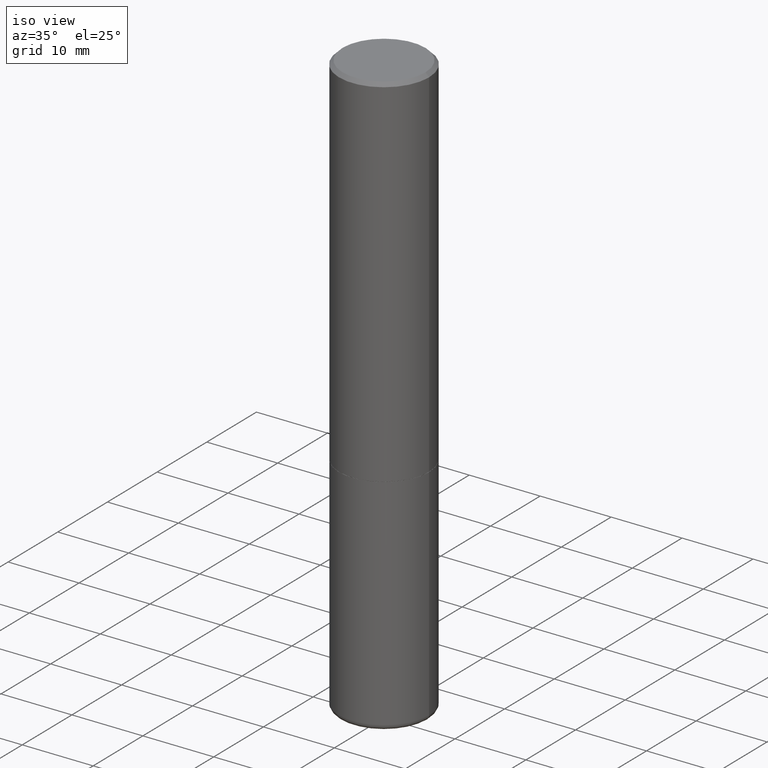
[diagram: clean part render]
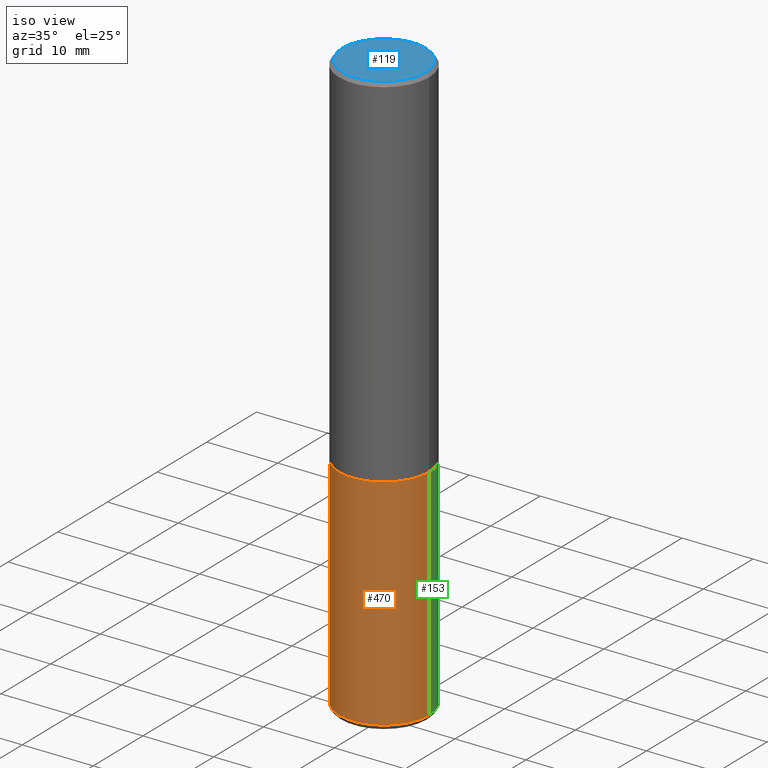
[diagram: same view with three faces highlighted in distinct colors, each labeled with its STEP entity id]
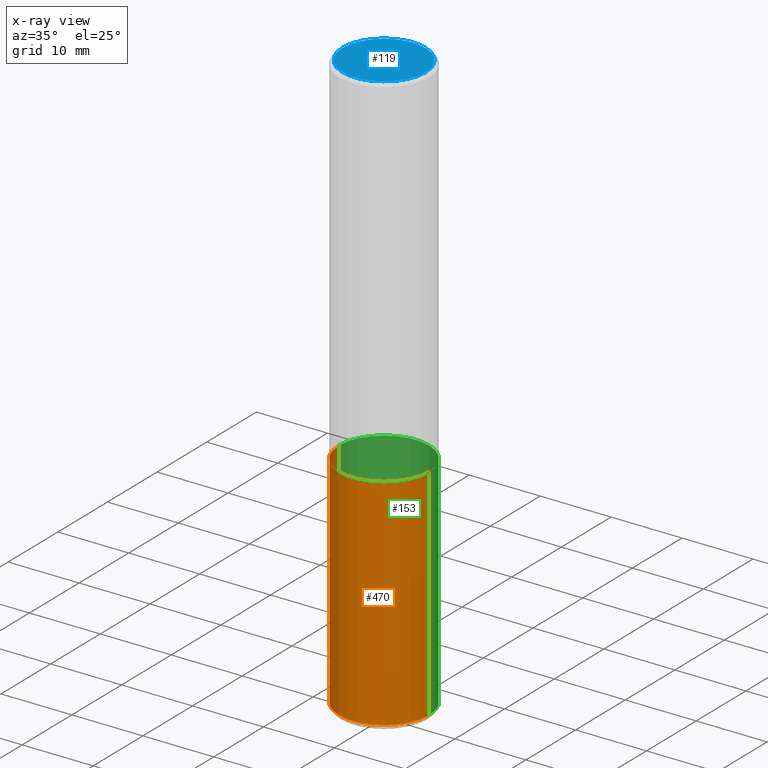
[diagram: x-ray of the same camera — body ghosted, the three highlighted faces saturated]
A machine part, iso view with three faces highlighted in distinct colors.
The next image is the same camera in x-ray (body ghosted, the three faces saturated) — at least one of them is partly hidden behind the body in this view.
Their STEP definitions:

[orange] entity #470 — the highlighted cylindrical surface (partial cylindrical patch) has radius 6.35 mm, axis along (-0, 0, 1).
#1 = DIRECTION ( 'NONE',  ( -2.445468806185136597E-29, 3.491481338843145583E-15, 1.000000000000000000 ) ) ;
#20 = CARTESIAN_POINT ( 'NONE',  ( -0.2499999999999998612, 1.776356839400249479E-15, -1.229733772563725745E-29 ) ) ;
#41 = CYLINDRICAL_SURFACE ( 'NONE', #102, 0.2499999999999998612 ) ;
#65 = EDGE_LOOP ( 'NONE', ( #230, #265, #428, #123 ) ) ;
#75 = VECTOR ( 'NONE', #321, 39.37007874015748143 ) ;
#96 = DIRECTION ( 'NONE',  ( -2.445468806185136597E-29, 3.491481338843145583E-15, 1.000000000000000000 ) ) ;
#102 = AXIS2_PLACEMENT_3D ( 'NONE', #196, #350, #198 ) ;
#118 = EDGE_CURVE ( 'NONE', #306, #121, #211, .T. ) ;
#121 = VERTEX_POINT ( 'NONE', #477 ) ;
#123 = ORIENTED_EDGE ( 'NONE', *, *, #236, .F. ) ;
#143 = CARTESIAN_POINT ( 'NONE',  ( 7.874412349394905166E-29, -1.124257389942225570E-14, -3.220001142308074993 ) ) ;
#150 = DIRECTION ( 'NONE',  ( 1.000000000000000000, -6.982962677686269077E-15, 0.000000000000000000 ) ) ;
#179 = AXIS2_PLACEMENT_3D ( 'NONE', #434, #96, #185 ) ;
#185 = DIRECTION ( 'NONE',  ( 1.000000000000000000, -6.982962677686268288E-15, 0.000000000000000000 ) ) ;
#189 = EDGE_CURVE ( 'NONE', #380, #305, #362, .T. ) ;
#194 = CIRCLE ( 'NONE', #256, 0.2500000000000000555 ) ;
#196 = CARTESIAN_POINT ( 'NONE',  ( 0.000000000000000000, 0.000000000000000000, 0.000000000000000000 ) ) ;
#198 = DIRECTION ( 'NONE',  ( 1.000000000000000000, -6.982962677686266711E-15, 4.876176775795935793E-29 ) ) ;
#211 = LINE ( 'NONE', #215, #490 ) ;
#215 = CARTESIAN_POINT ( 'NONE',  ( 0.2499999999999998612, -1.745740669421565692E-15, 1.219044193948983248E-29 ) ) ;
#230 = ORIENTED_EDGE ( 'NONE', *, *, #189, .F. ) ;
#236 = EDGE_CURVE ( 'NONE', #305, #121, #396, .T. ) ;
#238 = FACE_OUTER_BOUND ( 'NONE', #65, .T. ) ;
#256 = AXIS2_PLACEMENT_3D ( 'NONE', #143, #1, #150 ) ;
#259 = CARTESIAN_POINT ( 'NONE',  ( -0.2499999999999996669, -7.336411449154023361E-15, -2.000000000000000000 ) ) ;
#265 = ORIENTED_EDGE ( 'NONE', *, *, #332, .T. ) ;
#305 = VERTEX_POINT ( 'NONE', #259 ) ;
#306 = VERTEX_POINT ( 'NONE', #381 ) ;
#321 = DIRECTION ( 'NONE',  ( -2.445468806185136877E-29, 3.491481338843145188E-15, 1.000000000000000000 ) ) ;
#332 = EDGE_CURVE ( 'NONE', #380, #306, #194, .T. ) ;
#350 = DIRECTION ( 'NONE',  ( -2.445468806185136597E-29, 3.491481338843145583E-15, 1.000000000000000000 ) ) ;
#362 = LINE ( 'NONE', #20, #75 ) ;
#380 = VERTEX_POINT ( 'NONE', #416 ) ;
#381 = CARTESIAN_POINT ( 'NONE',  ( 0.2500000000000000555, -1.298831456884382237E-14, -3.220001142308074993 ) ) ;
#396 = CIRCLE ( 'NONE', #179, 0.2499999999999996669 ) ;
#416 = CARTESIAN_POINT ( 'NONE',  ( -0.2500000000000000555, -7.336411449154020205E-15, -3.220001142308074993 ) ) ;
#428 = ORIENTED_EDGE ( 'NONE', *, *, #118, .T. ) ;
#434 = CARTESIAN_POINT ( 'NONE',  ( 4.890937612370273194E-29, -6.982962677686291165E-15, -2.000000000000000000 ) ) ;
#470 = ADVANCED_FACE ( 'NONE', ( #238 ), #41, .T. ) ;
#477 = CARTESIAN_POINT ( 'NONE',  ( 0.2499999999999996669, -8.728703347107855476E-15, -2.000000000000000000 ) ) ;
#481 = DIRECTION ( 'NONE',  ( -2.445468806185136877E-29, 3.491481338843145188E-15, 1.000000000000000000 ) ) ;
#490 = VECTOR ( 'NONE', #481, 39.37007874015748143 ) ;

[blue] entity #119 — the highlighted planar face has unit normal (0, -0, -1).
#7 = VERTEX_POINT ( 'NONE', #160 ) ;
#23 = CARTESIAN_POINT ( 'NONE',  ( 1.606081415867835940E-15, 0.2299999999999992606, -8.009064516888707148E-16 ) ) ;
#40 = VERTEX_POINT ( 'NONE', #391 ) ;
#48 = EDGE_LOOP ( 'NONE', ( #457, #79 ) ) ;
#59 = DIRECTION ( 'NONE',  ( 2.438088387897960049E-29, -3.491481338843145188E-15, -1.000000000000000000 ) ) ;
#79 = ORIENTED_EDGE ( 'NONE', *, *, #92, .T. ) ;
#92 = EDGE_CURVE ( 'NONE', #40, #7, #167, .T. ) ;
#98 = DIRECTION ( 'NONE',  ( -2.445468806185136597E-29, 3.491481338843145583E-15, 1.000000000000000000 ) ) ;
#115 = AXIS2_PLACEMENT_3D ( 'NONE', #23, #59, #364 ) ;
#119 = ADVANCED_FACE ( 'NONE', ( #406 ), #398, .F. ) ;
#120 = CARTESIAN_POINT ( 'NONE',  ( -1.043851414335219820E-46, 1.490343170380447200E-32, 4.268512490100411279E-18 ) ) ;
#132 = AXIS2_PLACEMENT_3D ( 'NONE', #120, #392, #354 ) ;
#160 = CARTESIAN_POINT ( 'NONE',  ( -0.2299999999999992606, 1.640996229256267786E-15, 4.268512490089056766E-18 ) ) ;
#167 = CIRCLE ( 'NONE', #440, 0.2299999999999992606 ) ;
#173 = CARTESIAN_POINT ( 'NONE',  ( -1.043851414335219820E-46, 1.490343170380447200E-32, 4.268512490100411279E-18 ) ) ;
#250 = CIRCLE ( 'NONE', #132, 0.2299999999999992606 ) ;
#285 = DIRECTION ( 'NONE',  ( 1.000000000000000000, -6.982962677686266711E-15, 4.876225828469324576E-29 ) ) ;
#354 = DIRECTION ( 'NONE',  ( 1.000000000000000000, -6.982962677686266711E-15, 4.876225828469324576E-29 ) ) ;
#364 = DIRECTION ( 'NONE',  ( -1.000000000000000000, 6.982962677686265922E-15, -4.876176775795935793E-29 ) ) ;
#391 = CARTESIAN_POINT ( 'NONE',  ( 0.2299999999999992606, -1.681434332853594870E-15, 4.268512490111905999E-18 ) ) ;
#392 = DIRECTION ( 'NONE',  ( -2.445468806185136597E-29, 3.491481338843145583E-15, 1.000000000000000000 ) ) ;
#398 = PLANE ( 'NONE',  #115 ) ;
#406 = FACE_OUTER_BOUND ( 'NONE', #48, .T. ) ;
#440 = AXIS2_PLACEMENT_3D ( 'NONE', #173, #98, #285 ) ;
#443 = EDGE_CURVE ( 'NONE', #7, #40, #250, .T. ) ;
#457 = ORIENTED_EDGE ( 'NONE', *, *, #443, .T. ) ;

[green] entity #153 — the highlighted cylindrical surface (partial cylindrical patch) has radius 6.35 mm, axis along (-0, 0, 1).
#8 = CARTESIAN_POINT ( 'NONE',  ( 4.890937612370273194E-29, -6.982962677686291165E-15, -2.000000000000000000 ) ) ;
#14 = AXIS2_PLACEMENT_3D ( 'NONE', #8, #166, #164 ) ;
#20 = CARTESIAN_POINT ( 'NONE',  ( -0.2499999999999998612, 1.776356839400249479E-15, -1.229733772563725745E-29 ) ) ;
#55 = EDGE_CURVE ( 'NONE', #306, #380, #432, .T. ) ;
#75 = VECTOR ( 'NONE', #321, 39.37007874015748143 ) ;
#76 = CIRCLE ( 'NONE', #14, 0.2499999999999996669 ) ;
#101 = AXIS2_PLACEMENT_3D ( 'NONE', #246, #175, #249 ) ;
#112 = ORIENTED_EDGE ( 'NONE', *, *, #485, .F. ) ;
#118 = EDGE_CURVE ( 'NONE', #306, #121, #211, .T. ) ;
#121 = VERTEX_POINT ( 'NONE', #477 ) ;
#147 = AXIS2_PLACEMENT_3D ( 'NONE', #171, #213, #436 ) ;
#153 = ADVANCED_FACE ( 'NONE', ( #369 ), #209, .T. ) ;
#164 = DIRECTION ( 'NONE',  ( 1.000000000000000000, -6.982962677686268288E-15, 0.000000000000000000 ) ) ;
#166 = DIRECTION ( 'NONE',  ( -2.445468806185136597E-29, 3.491481338843145583E-15, 1.000000000000000000 ) ) ;
#171 = CARTESIAN_POINT ( 'NONE',  ( 0.000000000000000000, 0.000000000000000000, 0.000000000000000000 ) ) ;
#175 = DIRECTION ( 'NONE',  ( -2.445468806185136597E-29, 3.491481338843145583E-15, 1.000000000000000000 ) ) ;
#189 = EDGE_CURVE ( 'NONE', #380, #305, #362, .T. ) ;
#209 = CYLINDRICAL_SURFACE ( 'NONE', #147, 0.2499999999999998612 ) ;
#211 = LINE ( 'NONE', #215, #490 ) ;
#213 = DIRECTION ( 'NONE',  ( -2.445468806185136597E-29, 3.491481338843145583E-15, 1.000000000000000000 ) ) ;
#215 = CARTESIAN_POINT ( 'NONE',  ( 0.2499999999999998612, -1.745740669421565692E-15, 1.219044193948983248E-29 ) ) ;
#246 = CARTESIAN_POINT ( 'NONE',  ( 7.874412349394905166E-29, -1.124257389942225570E-14, -3.220001142308074993 ) ) ;
#249 = DIRECTION ( 'NONE',  ( 1.000000000000000000, -6.982962677686269077E-15, 0.000000000000000000 ) ) ;
#259 = CARTESIAN_POINT ( 'NONE',  ( -0.2499999999999996669, -7.336411449154023361E-15, -2.000000000000000000 ) ) ;
#305 = VERTEX_POINT ( 'NONE', #259 ) ;
#306 = VERTEX_POINT ( 'NONE', #381 ) ;
#321 = DIRECTION ( 'NONE',  ( -2.445468806185136877E-29, 3.491481338843145188E-15, 1.000000000000000000 ) ) ;
#362 = LINE ( 'NONE', #20, #75 ) ;
#369 = FACE_OUTER_BOUND ( 'NONE', #462, .T. ) ;
#380 = VERTEX_POINT ( 'NONE', #416 ) ;
#381 = CARTESIAN_POINT ( 'NONE',  ( 0.2500000000000000555, -1.298831456884382237E-14, -3.220001142308074993 ) ) ;
#409 = ORIENTED_EDGE ( 'NONE', *, *, #189, .T. ) ;
#416 = CARTESIAN_POINT ( 'NONE',  ( -0.2500000000000000555, -7.336411449154020205E-15, -3.220001142308074993 ) ) ;
#429 = ORIENTED_EDGE ( 'NONE', *, *, #55, .T. ) ;
#432 = CIRCLE ( 'NONE', #101, 0.2500000000000000555 ) ;
#436 = DIRECTION ( 'NONE',  ( 1.000000000000000000, -6.982962677686266711E-15, 4.876176775795935793E-29 ) ) ;
#462 = EDGE_LOOP ( 'NONE', ( #429, #409, #112, #488 ) ) ;
#477 = CARTESIAN_POINT ( 'NONE',  ( 0.2499999999999996669, -8.728703347107855476E-15, -2.000000000000000000 ) ) ;
#481 = DIRECTION ( 'NONE',  ( -2.445468806185136877E-29, 3.491481338843145188E-15, 1.000000000000000000 ) ) ;
#485 = EDGE_CURVE ( 'NONE', #121, #305, #76, .T. ) ;
#488 = ORIENTED_EDGE ( 'NONE', *, *, #118, .F. ) ;
#490 = VECTOR ( 'NONE', #481, 39.37007874015748143 ) ;